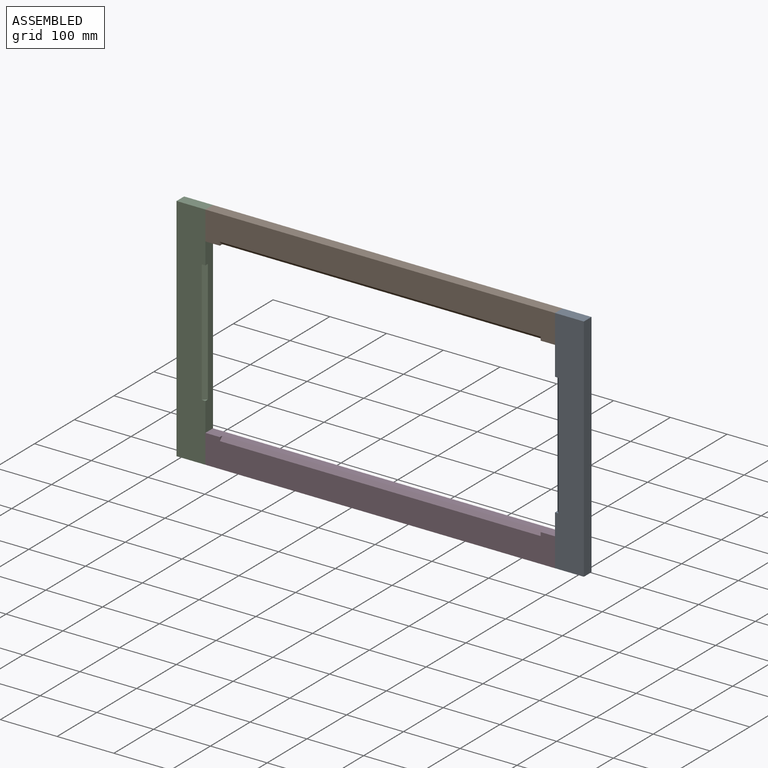
[diagram: assembled view]
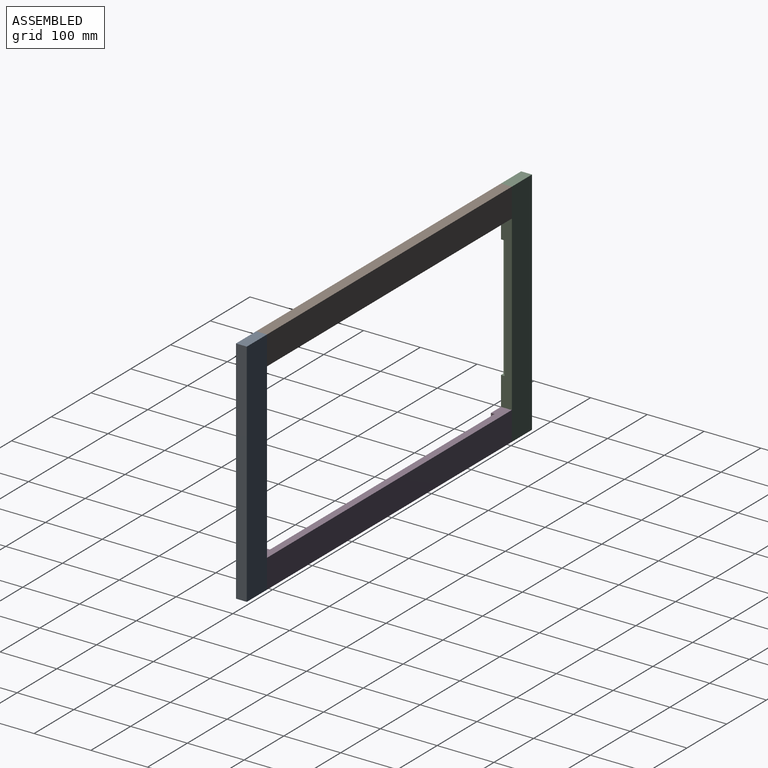
[diagram: assembled view, second angle]
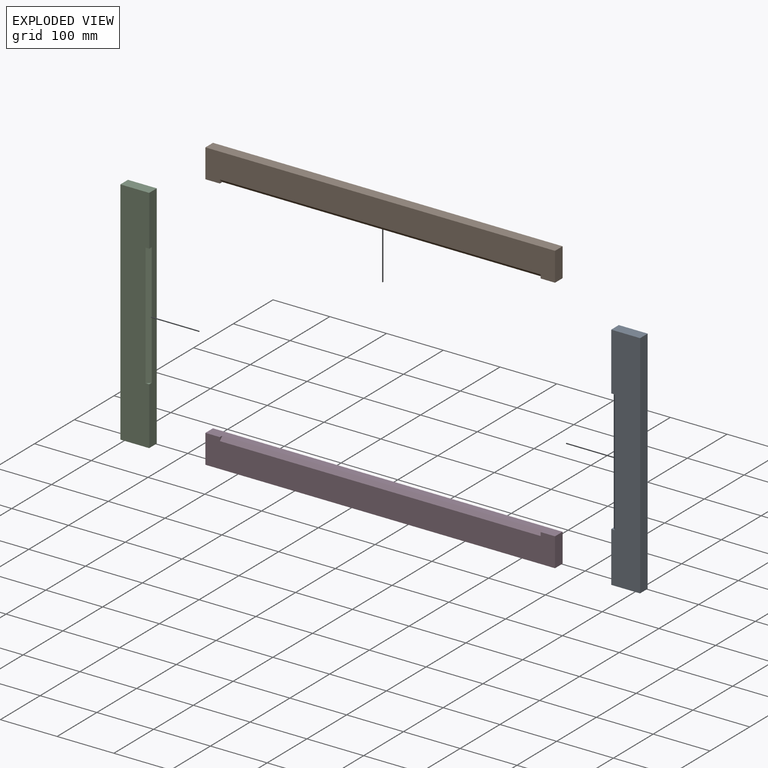
[diagram: exploded view]
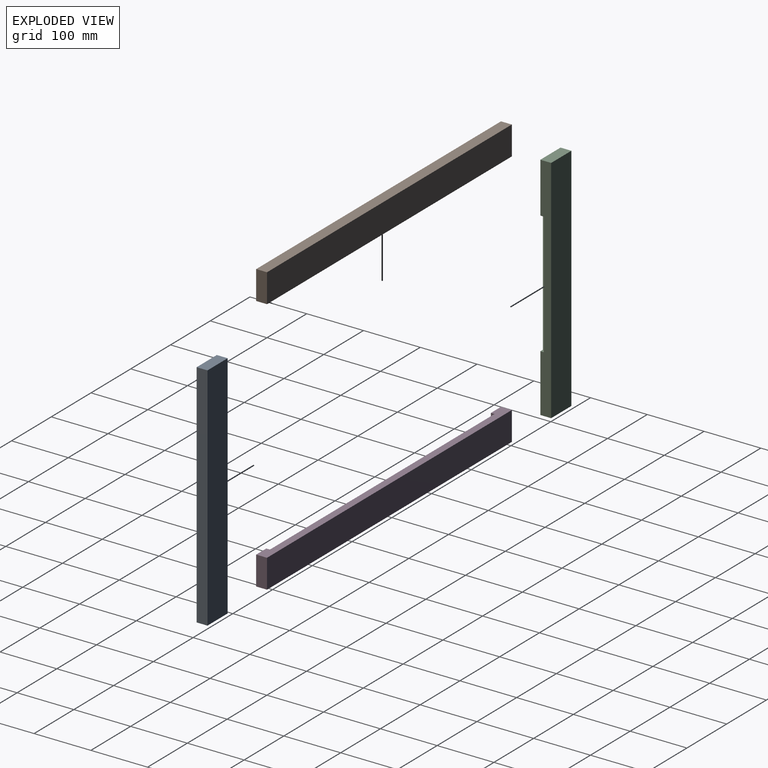
[diagram: exploded view, second angle]
ASSEMBLY  parts=4 mates=12
PART A: 9 faces, bbox 50.8x19.1x406.4 mm
  f0: plane 406.4x50.8mm, normal (0,-1,0), area 19274.2mm2, adj f1,f2,f3,f4,f6,f7,f8
  f1: plane 406.4x19.05mm, normal (-1,0,0), area 7741.9mm2, adj f0,f2,f4,f5
  f2: plane 50.8x19.05mm, normal (0,0,-1), area 967.7mm2, adj f0,f1,f3,f5
  f3: plane 406.4x19.05mm, normal (1,0,0), area 6371mm2, adj f0,f2,f4,f5,f6,f7,f8
  f4: plane 50.8x19.05mm, normal (0,0,1), area 967.7mm2, adj f0,f1,f3,f5
  f5: plane 406.4x50.8mm, normal (0,1,0), area 20645.1mm2, adj f1,f2,f3,f4
  f6: plane 215.9x6.35mm, normal (0.71,-0.71,0), area 1938.8mm2, adj f0,f3,f7,f8
  f7: plane 6.35x6.35mm, normal (0,0,-1), area 20.2mm2, adj f0,f3,f6
  f8: plane 6.35x6.35mm, normal (0,0,1), area 20.2mm2, adj f0,f3,f6
PART B: 9 faces, bbox 616x19.1x50.8 mm
  f0: plane 615.95x19.05mm, normal (0,0,-1), area 8145.1mm2, adj f1,f2,f3,f5,f6,f7,f8
  f1: plane 615.95x50.8mm, normal (0,-1,0), area 27701.6mm2, adj f0,f2,f3,f4,f6,f7,f8
  f2: plane 50.8x19.05mm, normal (-1,0,0), area 967.7mm2, adj f0,f1,f4,f5
  f3: plane 50.8x19.05mm, normal (1,0,0), area 967.7mm2, adj f0,f1,f4,f5
  f4: plane 615.95x19.05mm, normal (0,0,1), area 11733.8mm2, adj f1,f2,f3,f5
  f5: plane 615.95x50.8mm, normal (0,1,0), area 31290.3mm2, adj f0,f2,f3,f4
  f6: plane 565.15x6.35mm, normal (0,-0.71,-0.71), area 5075.2mm2, adj f0,f1,f7,f8
  f7: plane 6.35x6.35mm, normal (1,0,0), area 20.2mm2, adj f0,f1,f6
  f8: plane 6.35x6.35mm, normal (-1,0,0), area 20.2mm2, adj f0,f1,f6
PART C: same geometry as A
PART D: same geometry as B
PLACE A rot(axis=(0,1,0),180deg) t=(1916.21,-330.31,-1120.87)mm
PLACE B t=(1039.91,-330.31,-314.42)mm
PLACE C t=(1039.91,-330.31,-314.42)mm
PLACE D rot(axis=(0,1,0),180deg) t=(1916.21,-330.31,-1120.87)mm
MATE planar B.f2 <-> C.f3  axis (-1,0,0) through (1170.08,-289.01,-539.84)mm
MATE planar A.f4 <-> D.f4  axis (0,0,-1) through (1811.43,-289.01,-920.84)mm
MATE planar B.f1 <-> C.f0  axis (0,-1,0) through (1478.06,-298.53,-536.96)mm
MATE planar D.f4 <-> C.f2  axis (0,0,-1) through (1478.06,-289.01,-920.84)mm
MATE planar A.f3 <-> B.f3  axis (-1,0,0) through (1786.03,-287.64,-716.27)mm
MATE planar C.f2 <-> C.f2  axis (0,0,-1) through (1144.68,-289.01,-920.84)mm
MATE planar C.f0 <-> B.f1  axis (0,-1,0) through (1143.1,-298.53,-718.09)mm
MATE planar A.f0 <-> B.f1  axis (0,-1,0) through (1813.01,-298.53,-717.19)mm
MATE planar D.f1 <-> C.f0  axis (0,-1,0) through (1478.06,-298.53,-898.32)mm
MATE planar A.f2 <-> A.f2  axis (0,0,1) through (1811.43,-289.01,-514.44)mm
MATE planar C.f4 <-> B.f4  axis (0,0,1) through (1170.08,-289.01,-514.44)mm
MATE planar D.f3 <-> C.f3  axis (-1,0,0) through (1170.08,-289.01,-895.44)mm
